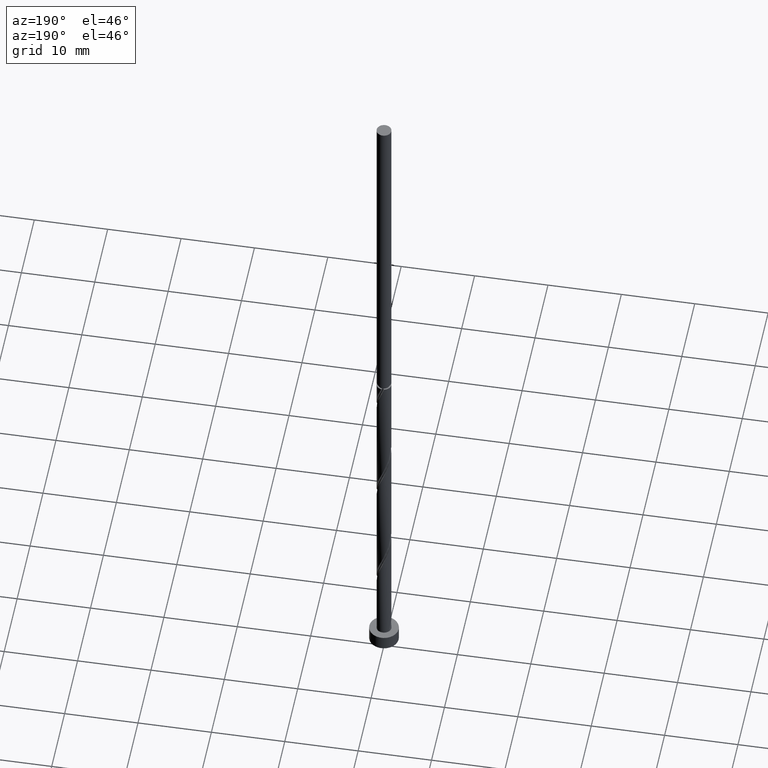
[diagram: clean part render]
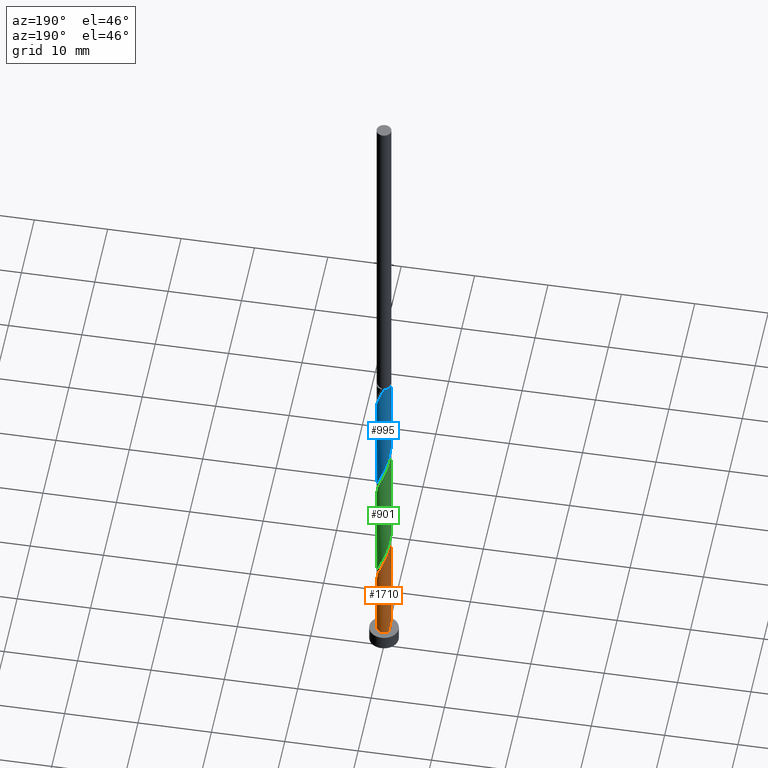
[diagram: same view with three faces highlighted in distinct colors, each labeled with its STEP entity id]
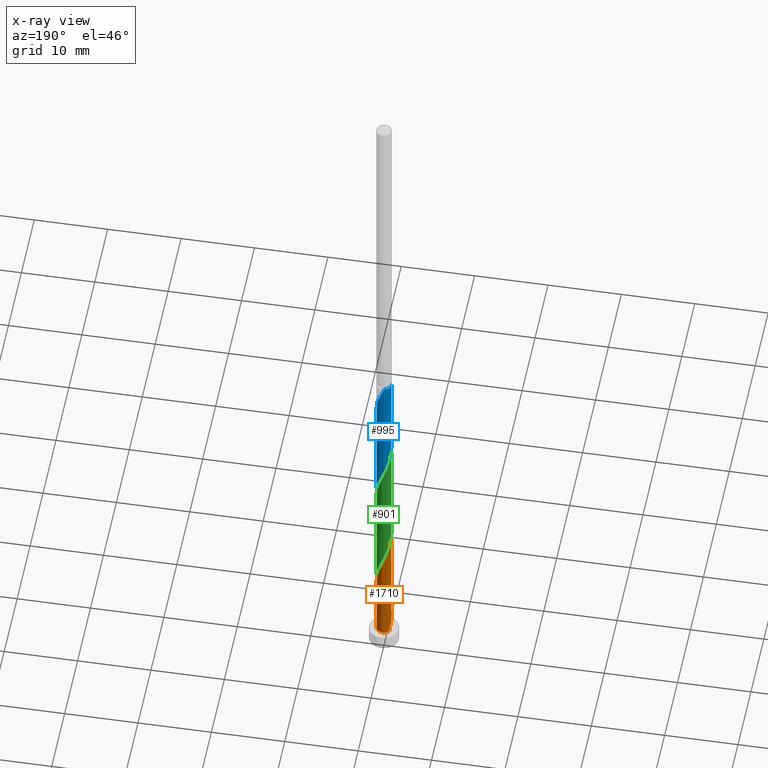
[diagram: x-ray of the same camera — body ghosted, the three highlighted faces saturated]
A machine part, auxiliary view with three faces highlighted in distinct colors.
The next image is the same camera in x-ray (body ghosted, the three faces saturated) — at least one of them is partly hidden behind the body in this view.
Their STEP definitions:

[orange] entity #1710 — the highlighted cylindrical surface (edge-blend (fillet) strip) has radius 1 mm, axis along (-0, -0, -1).
#63 = CARTESIAN_POINT ( 'NONE',  ( -0.02619704632701985031, 1.015088626125574711, 15.14834802638990574 ) ) ;
#118 = CARTESIAN_POINT ( 'NONE',  ( -0.9999999999999940048, 0.01290167433229766000, 3.608148503741846813 ) ) ;
#150 = CARTESIAN_POINT ( 'NONE',  ( -0.9482036394194104378, 0.3176631206038675881, 18.38908876713064444 ) ) ;
#166 = CARTESIAN_POINT ( 'NONE',  ( -1.000000000000001554, 5.639459871452275137E-16, 19.24712276769746211 ) ) ;
#219 = CARTESIAN_POINT ( 'NONE',  ( -1.000000000000001554, 5.639459871452275137E-16, 19.24712276769746211 ) ) ;
#220 = VECTOR ( 'NONE', #1226, 1000.000000000000000 ) ;
#235 = CARTESIAN_POINT ( 'NONE',  ( 1.000000000000001554, -5.807523245104826161E-16, 10.91378943436413174 ) ) ;
#243 = CARTESIAN_POINT ( 'NONE',  ( -1.000000000000001110, 5.614885271482465354E-13, 3.642165877673452457 ) ) ;
#257 = EDGE_CURVE ( 'NONE', #1102, #877, #658, .T. ) ;
#306 = CARTESIAN_POINT ( 'NONE',  ( 0.7492061519980941497, 0.6623368793961353918, 12.83353321157508198 ) ) ;
#372 = CYLINDRICAL_SURFACE ( 'NONE', #1081, 1.000000000000000000 ) ;
#395 = EDGE_CURVE ( 'NONE', #877, #1002, #406, .T. ) ;
#406 = CIRCLE ( 'NONE', #1108, 1.000000000000000000 ) ;
#409 = VECTOR ( 'NONE', #1110, 1000.000000000000000 ) ;
#440 = CARTESIAN_POINT ( 'NONE',  ( -1.000000000000002220, 0.1630543718204592596, 18.81720325533184024 ) ) ;
#447 = CARTESIAN_POINT ( 'NONE',  ( 0.9951180796480333379, 0.2020673444260030482, 11.44464432268620335 ) ) ;
#472 =( BOUNDED_CURVE ( )  B_SPLINE_CURVE ( 2, ( #849, #622, #1574, #447, #1282, #991, #306, #1332, #999, #584, #1583, #63, #865, #1291, #592, #1439, #1755, #732, #150, #440, #166 ),
 .UNSPECIFIED., .F., .T. ) 
 B_SPLINE_CURVE_WITH_KNOTS ( ( 3, 2, 2, 2, 2, 2, 2, 2, 2, 2, 3 ),
 ( 0.1795248053855293680, 0.1805555555555555802, 0.1944444444444444198, 0.2083333333333333703, 0.2222222222222222099, 0.2361111111111111605, 0.2500000000000000000, 0.2638888888888888395, 0.2777777777777777901, 0.2916666666666666297, 0.3045248053855295622 ),
 .UNSPECIFIED. ) 
 CURVE ( )  GEOMETRIC_REPRESENTATION_ITEM ( )  RATIONAL_B_SPLINE_CURVE ( ( 0.9071930855141416838, 0.9080659294509891843, 0.9090909090909289336, 0.8952797754656631746, 0.9090909090909289336, 0.8952797754656631746, 0.9090909090909289336, 0.8952797754656631746, 0.9090909090909289336, 0.8952797754656631746, 0.9090909090909289336, 0.8952797754656631746, 0.9090909090909289336, 0.8952797754656631746, 0.9090909090909289336, 0.8952797754656631746, 0.9090909090909289336, 0.8952797754656631746, 0.9090909090909289336, 0.8963047551056027018, 0.9071930855141420169 ) ) 
 REPRESENTATION_ITEM ( '' )  );
#498 = FACE_OUTER_BOUND ( 'NONE', #821, .T. ) ;
#584 = CARTESIAN_POINT ( 'NONE',  ( 0.3225635862758384764, 0.9628312089533845874, 14.22242210046397837 ) ) ;
#592 = CARTESIAN_POINT ( 'NONE',  ( -0.5221762109439036514, 0.8528376192009065049, 16.53723691527879325 ) ) ;
#622 = CARTESIAN_POINT ( 'NONE',  ( 1.000000000000001332, 0.01290167433201631388, 10.94780680829647679 ) ) ;
#658 = LINE ( 'NONE', #1359, #220 ) ;
#663 = DIRECTION ( 'NONE',  ( -1.000000000000000000, 0.000000000000000000, 0.000000000000000000 ) ) ;
#692 = EDGE_CURVE ( 'NONE', #1709, #1002, #1432, .T. ) ;
#698 = CARTESIAN_POINT ( 'NONE',  ( 1.000000000000000000, 1.224646799147353207E-16, 2.000000000000000000 ) ) ;
#732 = CARTESIAN_POINT ( 'NONE',  ( -0.8921910604809016876, 0.4848570054394703566, 17.92612580416769319 ) ) ;
#797 = DIRECTION ( 'NONE',  ( -0.000000000000000000, -0.000000000000000000, -1.000000000000000000 ) ) ;
#821 = EDGE_LOOP ( 'NONE', ( #987, #1425, #844, #1303, #1213 ) ) ;
#828 = CARTESIAN_POINT ( 'NONE',  ( -1.000000000000000000, 0.000000000000000000, 98.00000000000000000 ) ) ;
#844 = ORIENTED_EDGE ( 'NONE', *, *, #395, .T. ) ;
#849 = CARTESIAN_POINT ( 'NONE',  ( 1.000000000000001554, -5.807523245104826161E-16, 10.91378943436413174 ) ) ;
#865 = CARTESIAN_POINT ( 'NONE',  ( -0.1989974874213158718, 0.9800000000000029798, 15.61131098935286587 ) ) ;
#877 = VERTEX_POINT ( 'NONE', #698 ) ;
#957 = CARTESIAN_POINT ( 'NONE',  ( -0.9305560469009571678, 0.3661494825560536737, 2.648348026389899079 ) ) ;
#966 = EDGE_CURVE ( 'NONE', #1102, #1677, #472, .T. ) ;
#975 = CARTESIAN_POINT ( 'NONE',  ( -0.8144642547948971467, 0.5802137344646324246, 1.999999999999997335 ) ) ;
#987 = ORIENTED_EDGE ( 'NONE', *, *, #966, .F. ) ;
#991 = CARTESIAN_POINT ( 'NONE',  ( 0.8659940141538823299, 0.5302316206861036330, 12.37057024861212717 ) ) ;
#999 = CARTESIAN_POINT ( 'NONE',  ( 0.4774909380590728336, 0.8786366735297754804, 13.75945913750101290 ) ) ;
#1002 = VERTEX_POINT ( 'NONE', #1721 ) ;
#1048 = CARTESIAN_POINT ( 'NONE',  ( 0.000000000000000000, 0.000000000000000000, 98.00000000000000000 ) ) ;
#1081 = AXIS2_PLACEMENT_3D ( 'NONE', #1048, #797, #663 ) ;
#1102 = VERTEX_POINT ( 'NONE', #235 ) ;
#1108 = AXIS2_PLACEMENT_3D ( 'NONE', #1402, #1686, #1256 ) ;
#1110 = DIRECTION ( 'NONE',  ( -0.000000000000000000, -0.000000000000000000, -1.000000000000000000 ) ) ;
#1213 = ORIENTED_EDGE ( 'NONE', *, *, #1274, .F. ) ;
#1226 = DIRECTION ( 'NONE',  ( -0.000000000000000000, -0.000000000000000000, -1.000000000000000000 ) ) ;
#1256 = DIRECTION ( 'NONE',  ( 1.000000000000000000, 0.000000000000000000, 0.000000000000000000 ) ) ;
#1262 = LINE ( 'NONE', #828, #409 ) ;
#1274 = EDGE_CURVE ( 'NONE', #1677, #1709, #1262, .T. ) ;
#1282 = CARTESIAN_POINT ( 'NONE',  ( 0.9305560469009577229, 0.3661494825560533406, 11.90760728564916526 ) ) ;
#1291 = CARTESIAN_POINT ( 'NONE',  ( -0.3717979285156123859, 0.9449113738744318036, 16.07427395231583489 ) ) ;
#1303 = ORIENTED_EDGE ( 'NONE', *, *, #692, .F. ) ;
#1332 = CARTESIAN_POINT ( 'NONE',  ( 0.6324182898423071908, 0.7944421381061670395, 13.29649617453804922 ) ) ;
#1359 = CARTESIAN_POINT ( 'NONE',  ( 1.000000000000000000, 1.224646799147353207E-16, 98.00000000000000000 ) ) ;
#1402 = CARTESIAN_POINT ( 'NONE',  ( 0.000000000000000000, 0.000000000000000000, 2.000000000000000000 ) ) ;
#1415 = CARTESIAN_POINT ( 'NONE',  ( -0.8856399419170188914, 0.4803021854474019414, 2.326262550401513529 ) ) ;
#1425 = ORIENTED_EDGE ( 'NONE', *, *, #257, .T. ) ;
#1432 =( BOUNDED_CURVE ( )  B_SPLINE_CURVE ( 2, ( #1530, #118, #1653, #1546, #957, #1415, #975 ),
 .UNSPECIFIED., .F., .T. ) 
 B_SPLINE_CURVE_WITH_KNOTS ( ( 3, 2, 2, 3 ),
 ( 0.9295248053855518222, 0.9305555555555555802, 0.9444444444444444198, 0.9541518855491376572 ),
 .UNSPECIFIED. ) 
 CURVE ( )  GEOMETRIC_REPRESENTATION_ITEM ( )  RATIONAL_B_SPLINE_CURVE ( ( 0.9071930855141691064, 0.9080659294510008417, 0.9090909090909183865, 0.8952797754656526275, 0.9090909090909183865, 0.8994378139204637357, 0.9032785055597161161 ) ) 
 REPRESENTATION_ITEM ( '' )  );
#1439 = CARTESIAN_POINT ( 'NONE',  ( -0.6725544933721950835, 0.7607638645273815392, 17.00019987824175516 ) ) ;
#1530 = CARTESIAN_POINT ( 'NONE',  ( -1.000000000000001110, 5.614885271482465354E-13, 3.642165877673452457 ) ) ;
#1546 = CARTESIAN_POINT ( 'NONE',  ( -0.9951180796480333379, 0.2020673444260032703, 3.111310989352863654 ) ) ;
#1574 = CARTESIAN_POINT ( 'NONE',  ( 0.9996671490029762630, 0.02579905432886920452, 10.98168135972323789 ) ) ;
#1583 = CARTESIAN_POINT ( 'NONE',  ( 0.1481832699744097537, 0.9889599175394793162, 14.68538506342694028 ) ) ;
#1653 = CARTESIAN_POINT ( 'NONE',  ( -0.9996671490029760410, 0.02579905432886922187, 3.574273952315826453 ) ) ;
#1677 = VERTEX_POINT ( 'NONE', #219 ) ;
#1686 = DIRECTION ( 'NONE',  ( 0.000000000000000000, 0.000000000000000000, 1.000000000000000000 ) ) ;
#1709 = VERTEX_POINT ( 'NONE', #243 ) ;
#1710 = ADVANCED_FACE ( 'NONE', ( #498 ), #372, .T. ) ;
#1721 = CARTESIAN_POINT ( 'NONE',  ( -0.8144642547948971467, 0.5802137344646324246, 1.999999999999997335 ) ) ;
#1755 = CARTESIAN_POINT ( 'NONE',  ( -0.7823727769265483856, 0.6228104349834256981, 17.46316284120471707 ) ) ;

[blue] entity #995 — the highlighted cylindrical surface (edge-blend (fillet) strip) has radius 1 mm, axis along (-0, -0, -1).
#1 = EDGE_CURVE ( 'NONE', #1191, #394, #1484, .T. ) ;
#21 = CARTESIAN_POINT ( 'NONE',  ( -1.000000000000001110, -5.732828412370425654E-16, 36.97549921100826964 ) ) ;
#46 = AXIS2_PLACEMENT_3D ( 'NONE', #486, #509, #1799 ) ;
#65 = CARTESIAN_POINT ( 'NONE',  ( -0.1989974874213158440, 0.9800000000000025357, 48.94464432268620868 ) ) ;
#71 = EDGE_CURVE ( 'NONE', #271, #1311, #1054, .T. ) ;
#78 = CARTESIAN_POINT ( 'NONE',  ( -1.000000000000005995, 0.000000000000000000, 48.94464432268620158 ) ) ;
#104 = CARTESIAN_POINT ( 'NONE',  ( -1.000000000000000000, 0.000000000000000000, 98.00000000000000000 ) ) ;
#121 = CARTESIAN_POINT ( 'NONE',  ( 0.8921910604809017986, 0.4848570054394699680, 29.96316284120472062 ) ) ;
#129 = CARTESIAN_POINT ( 'NONE',  ( -0.6324182898423069688, 0.7944421381061669285, 34.59279247083436104 ) ) ;
#137 = CARTESIAN_POINT ( 'NONE',  ( 1.000000000000000888, 0.1630543718204619241, 29.07208539004057002 ) ) ;
#144 = CARTESIAN_POINT ( 'NONE',  ( 0.1989974874213162603, 0.9800000000000025357, 32.27797765601952307 ) ) ;
#159 = VECTOR ( 'NONE', #201, 1000.000000000000000 ) ;
#201 = DIRECTION ( 'NONE',  ( -0.000000000000000000, -0.000000000000000000, -1.000000000000000000 ) ) ;
#205 = EDGE_CURVE ( 'NONE', #1191, #1767, #848, .T. ) ;
#237 = DIRECTION ( 'NONE',  ( -0.000000000000000000, -0.000000000000000000, -1.000000000000000000 ) ) ;
#271 = VERTEX_POINT ( 'NONE', #78 ) ;
#360 =( BOUNDED_CURVE ( )  B_SPLINE_CURVE ( 2, ( #1400, #1827, #835, #851, #820, #1254, #1277, #129, #556, #1684, #570, #843, #144, #1125, #1410, #425, #419, #121, #986, #137, #1817 ),
 .UNSPECIFIED., .F., .T. ) 
 B_SPLINE_CURVE_WITH_KNOTS ( ( 3, 2, 2, 2, 2, 2, 2, 2, 2, 2, 3 ),
 ( 0.4295248053855293957, 0.4305555555555555802, 0.4444444444444444198, 0.4583333333333333148, 0.4722222222222222099, 0.4861111111111111049, 0.5000000000000000000, 0.5138888888888888395, 0.5277777777777777901, 0.5416666666666666297, 0.5545248053855292847 ),
 .UNSPECIFIED. ) 
 CURVE ( )  GEOMETRIC_REPRESENTATION_ITEM ( )  RATIONAL_B_SPLINE_CURVE ( ( 0.9071930855141312477, 0.9080659294509786372, 0.9090909090909183865, 0.8952797754656526275, 0.9090909090909183865, 0.8952797754656526275, 0.9090909090909183865, 0.8952797754656526275, 0.9090909090909183865, 0.8952797754656526275, 0.9090909090909183865, 0.8952797754656526275, 0.9090909090909183865, 0.8952797754656526275, 0.9090909090909183865, 0.8952797754656526275, 0.9090909090909183865, 0.8952797754656526275, 0.9090909090909183865, 0.8963047551055924878, 0.9071930855141309147 ) ) 
 REPRESENTATION_ITEM ( '' )  );
#394 = VERTEX_POINT ( 'NONE', #1536 ) ;
#419 = CARTESIAN_POINT ( 'NONE',  ( 0.7823727769265482745, 0.6228104349834252540, 30.42612580416768253 ) ) ;
#425 = CARTESIAN_POINT ( 'NONE',  ( 0.6725544933721956387, 0.7607638645273813172, 30.88908876713064799 ) ) ;
#486 = CARTESIAN_POINT ( 'NONE',  ( 0.000000000000000000, 0.000000000000000000, 48.94464432268620158 ) ) ;
#491 = CARTESIAN_POINT ( 'NONE',  ( 0.9305560469009577229, 0.3661494825560533406, 45.24094061898250629 ) ) ;
#509 = DIRECTION ( 'NONE',  ( -0.000000000000000000, -0.000000000000000000, -1.000000000000000000 ) ) ;
#519 = CARTESIAN_POINT ( 'NONE',  ( -0.1989974874213158440, 0.9800000000000025357, 48.94464432268620868 ) ) ;
#540 = ORIENTED_EDGE ( 'NONE', *, *, #71, .F. ) ;
#556 = CARTESIAN_POINT ( 'NONE',  ( -0.4774909380590723895, 0.8786366735297754804, 34.12982950787137781 ) ) ;
#570 = CARTESIAN_POINT ( 'NONE',  ( -0.1481832699744089488, 0.9889599175394793162, 33.20390358194544689 ) ) ;
#576 = FACE_OUTER_BOUND ( 'NONE', #1245, .T. ) ;
#657 = CARTESIAN_POINT ( 'NONE',  ( 0.6324182898423071908, 0.7944421381061670395, 46.62982950787139202 ) ) ;
#684 = ORIENTED_EDGE ( 'NONE', *, *, #205, .F. ) ;
#700 = CARTESIAN_POINT ( 'NONE',  ( 1.000000000000001332, -6.871924611570983959E-16, 44.24712276769746921 ) ) ;
#765 = CARTESIAN_POINT ( 'NONE',  ( 0.4774909380590728336, 0.8786366735297754804, 47.09279247083434683 ) ) ;
#800 = CARTESIAN_POINT ( 'NONE',  ( 0.7492061519980941497, 0.6623368793961353918, 46.16686654490842301 ) ) ;
#820 = CARTESIAN_POINT ( 'NONE',  ( -0.9305560469009571678, 0.3661494825560536737, 35.98168135972322546 ) ) ;
#835 = CARTESIAN_POINT ( 'NONE',  ( -0.9996671490029760410, 0.02579905432886922187, 36.90760728564914928 ) ) ;
#843 = CARTESIAN_POINT ( 'NONE',  ( 0.02619704632701990582, 1.015088626125574489, 32.74094061898249919 ) ) ;
#848 =( BOUNDED_CURVE ( )  B_SPLINE_CURVE ( 2, ( #946, #1516, #1367, #1064, #491, #1494, #800, #657, #765, #1628, #1225, #1791, #65 ),
 .UNSPECIFIED., .F., .T. ) 
 B_SPLINE_CURVE_WITH_KNOTS ( ( 3, 2, 2, 2, 2, 2, 3 ),
 ( 0.6795248053855295067, 0.6805555555555555802, 0.6944444444444444198, 0.7083333333333332593, 0.7222222222222222099, 0.7361111111111111605, 0.7500000000000000000 ),
 .UNSPECIFIED. ) 
 CURVE ( )  GEOMETRIC_REPRESENTATION_ITEM ( )  RATIONAL_B_SPLINE_CURVE ( ( 0.9071930855141419059, 0.9080659294509891843, 0.9090909090909289336, 0.8952797754656631746, 0.9090909090909289336, 0.8952797754656631746, 0.9090909090909289336, 0.8952797754656631746, 0.9090909090909289336, 0.8952797754656631746, 0.9090909090909289336, 0.8952797754656631746, 0.9090909090909289336 ) ) 
 REPRESENTATION_ITEM ( '' )  );
#851 = CARTESIAN_POINT ( 'NONE',  ( -0.9951180796480333379, 0.2020673444260032703, 36.44464432268619447 ) ) ;
#909 = ORIENTED_EDGE ( 'NONE', *, *, #1304, .F. ) ;
#946 = CARTESIAN_POINT ( 'NONE',  ( 1.000000000000001332, -6.871924611570983959E-16, 44.24712276769746921 ) ) ;
#986 = CARTESIAN_POINT ( 'NONE',  ( 0.9482036394194102158, 0.3176631206038675326, 29.50019987824175516 ) ) ;
#995 = ADVANCED_FACE ( 'NONE', ( #576 ), #1616, .T. ) ;
#1054 = LINE ( 'NONE', #104, #1194 ) ;
#1064 = CARTESIAN_POINT ( 'NONE',  ( 0.9951180796480333379, 0.2020673444260030482, 44.77797765601955859 ) ) ;
#1125 = CARTESIAN_POINT ( 'NONE',  ( 0.3717979285156123304, 0.9449113738744315816, 31.81501469305657182 ) ) ;
#1139 = CARTESIAN_POINT ( 'NONE',  ( 0.000000000000000000, 0.000000000000000000, 98.00000000000000000 ) ) ;
#1154 = DIRECTION ( 'NONE',  ( -1.000000000000000000, 0.000000000000000000, 0.000000000000000000 ) ) ;
#1191 = VERTEX_POINT ( 'NONE', #700 ) ;
#1194 = VECTOR ( 'NONE', #237, 1000.000000000000000 ) ;
#1225 = CARTESIAN_POINT ( 'NONE',  ( 0.1481832699744097537, 0.9889599175394793162, 48.01871839676027065 ) ) ;
#1245 = EDGE_LOOP ( 'NONE', ( #684, #1587, #909, #540, #1781 ) ) ;
#1254 = CARTESIAN_POINT ( 'NONE',  ( -0.8659940141538817748, 0.5302316206861042991, 35.51871839676027776 ) ) ;
#1277 = CARTESIAN_POINT ( 'NONE',  ( -0.7492061519980941497, 0.6623368793961356138, 35.05575543379730874 ) ) ;
#1304 = EDGE_CURVE ( 'NONE', #1311, #394, #360, .T. ) ;
#1311 = VERTEX_POINT ( 'NONE', #21 ) ;
#1314 = AXIS2_PLACEMENT_3D ( 'NONE', #1139, #1705, #1154 ) ;
#1367 = CARTESIAN_POINT ( 'NONE',  ( 0.9996671490029762630, 0.02579905432886920452, 44.31501469305657537 ) ) ;
#1400 = CARTESIAN_POINT ( 'NONE',  ( -1.000000000000001110, -5.732828412370425654E-16, 36.97549921100826964 ) ) ;
#1410 = CARTESIAN_POINT ( 'NONE',  ( 0.5221762109439042066, 0.8528376192009059498, 31.35205173009359569 ) ) ;
#1436 = CIRCLE ( 'NONE', #46, 1.000000000000005995 ) ;
#1484 = LINE ( 'NONE', #1757, #159 ) ;
#1494 = CARTESIAN_POINT ( 'NONE',  ( 0.8659940141538823299, 0.5302316206861036330, 45.70390358194546820 ) ) ;
#1516 = CARTESIAN_POINT ( 'NONE',  ( 1.000000000000001554, 0.01290167433201795839, 44.28114014162982670 ) ) ;
#1536 = CARTESIAN_POINT ( 'NONE',  ( 1.000000000000001554, 8.963379928136170054E-17, 28.64216587767493039 ) ) ;
#1587 = ORIENTED_EDGE ( 'NONE', *, *, #1, .T. ) ;
#1616 = CYLINDRICAL_SURFACE ( 'NONE', #1314, 1.000000000000000000 ) ;
#1628 = CARTESIAN_POINT ( 'NONE',  ( 0.3225635862758384764, 0.9628312089533845874, 47.55575543379731585 ) ) ;
#1657 = EDGE_CURVE ( 'NONE', #271, #1767, #1436, .T. ) ;
#1684 = CARTESIAN_POINT ( 'NONE',  ( -0.3225635862758378658, 0.9628312089533848095, 33.66686654490842301 ) ) ;
#1705 = DIRECTION ( 'NONE',  ( -0.000000000000000000, -0.000000000000000000, -1.000000000000000000 ) ) ;
#1757 = CARTESIAN_POINT ( 'NONE',  ( 1.000000000000000000, 1.224646799147353207E-16, 98.00000000000000000 ) ) ;
#1767 = VERTEX_POINT ( 'NONE', #519 ) ;
#1781 = ORIENTED_EDGE ( 'NONE', *, *, #1657, .T. ) ;
#1791 = CARTESIAN_POINT ( 'NONE',  ( -0.02619704632701985031, 1.015088626125574711, 48.48168135972323256 ) ) ;
#1799 = DIRECTION ( 'NONE',  ( -1.000000000000000000, 0.000000000000000000, 0.000000000000000000 ) ) ;
#1817 = CARTESIAN_POINT ( 'NONE',  ( 1.000000000000001554, 8.963379928136170054E-17, 28.64216587767493394 ) ) ;
#1827 = CARTESIAN_POINT ( 'NONE',  ( -1.000000000000001110, 0.01290167433201666949, 36.94148183707591215 ) ) ;

[green] entity #901 — the highlighted cylindrical surface (edge-blend (fillet) strip) has radius 1 mm, axis along (-0, -0, -1).
#4 = CARTESIAN_POINT ( 'NONE',  ( 0.1481832699744097537, 0.9889599175394793162, 31.35205173009360280 ) ) ;
#32 = CARTESIAN_POINT ( 'NONE',  ( -0.8921910604809016876, 0.4848570054394703566, 34.59279247083436815 ) ) ;
#44 = ORIENTED_EDGE ( 'NONE', *, *, #1185, .T. ) ;
#152 = CARTESIAN_POINT ( 'NONE',  ( -1.000000000000000000, 0.000000000000000000, 98.00000000000000000 ) ) ;
#157 = FACE_OUTER_BOUND ( 'NONE', #1562, .T. ) ;
#266 = CARTESIAN_POINT ( 'NONE',  ( 0.9996671490029762630, 0.02579905432886920452, 27.64834802638990396 ) ) ;
#270 = LINE ( 'NONE', #152, #485 ) ;
#283 = CARTESIAN_POINT ( 'NONE',  ( -0.5221762109439036514, 0.8528376192009065049, 33.20390358194545399 ) ) ;
#295 = CARTESIAN_POINT ( 'NONE',  ( 0.3717979285156123304, 0.9449113738744315816, 15.14834802638990574 ) ) ;
#320 = CARTESIAN_POINT ( 'NONE',  ( 0.8921910604809017986, 0.4848570054394699680, 13.29649617453804744 ) ) ;
#417 = CARTESIAN_POINT ( 'NONE',  ( 0.3225635862758384764, 0.9628312089533845874, 30.88908876713064444 ) ) ;
#434 = CARTESIAN_POINT ( 'NONE',  ( -0.4774909380590723895, 0.8786366735297754804, 17.46316284120470996 ) ) ;
#442 = CARTESIAN_POINT ( 'NONE',  ( 0.6725544933721956387, 0.7607638645273813172, 14.22242210046397837 ) ) ;
#455 = CARTESIAN_POINT ( 'NONE',  ( -0.7823727769265483856, 0.6228104349834256981, 34.12982950787138492 ) ) ;
#485 = VECTOR ( 'NONE', #707, 1000.000000000000000 ) ;
#499 = CARTESIAN_POINT ( 'NONE',  ( 1.000000000000000000, 1.224646799147353207E-16, 98.00000000000000000 ) ) ;
#527 = CARTESIAN_POINT ( 'NONE',  ( 1.000000000000001554, -5.807523245104826161E-16, 27.58045610103079781 ) ) ;
#531 = VERTEX_POINT ( 'NONE', #1829 ) ;
#546 = CARTESIAN_POINT ( 'NONE',  ( -1.000000000000001554, -2.108261653930336723E-15, 35.91378943436414062 ) ) ;
#554 = CARTESIAN_POINT ( 'NONE',  ( 0.8659940141538823299, 0.5302316206861036330, 29.03723691527879680 ) ) ;
#557 = ORIENTED_EDGE ( 'NONE', *, *, #1215, .F. ) ;
#562 = CARTESIAN_POINT ( 'NONE',  ( -0.02619704632701985031, 1.015088626125574711, 31.81501469305657892 ) ) ;
#564 = CARTESIAN_POINT ( 'NONE',  ( -0.9996671490029760410, 0.02579905432886922187, 20.24094061898248853 ) ) ;
#579 = CARTESIAN_POINT ( 'NONE',  ( 0.5221762109439042066, 0.8528376192009059498, 14.68538506342693672 ) ) ;
#690 = CARTESIAN_POINT ( 'NONE',  ( -0.3225635862758378658, 0.9628312089533848095, 17.00019987824175516 ) ) ;
#701 = ORIENTED_EDGE ( 'NONE', *, *, #883, .F. ) ;
#705 = CARTESIAN_POINT ( 'NONE',  ( -0.9482036394194104378, 0.3176631206038675881, 35.05575543379730874 ) ) ;
#707 = DIRECTION ( 'NONE',  ( -0.000000000000000000, -0.000000000000000000, -1.000000000000000000 ) ) ;
#825 = CARTESIAN_POINT ( 'NONE',  ( 0.9951180796480333379, 0.2020673444260030482, 28.11131098935287653 ) ) ;
#841 = CARTESIAN_POINT ( 'NONE',  ( -0.6725544933721950835, 0.7607638645273815392, 33.66686654490843722 ) ) ;
#883 = EDGE_CURVE ( 'NONE', #1401, #1200, #972, .T. ) ;
#901 = ADVANCED_FACE ( 'NONE', ( #157 ), #1006, .T. ) ;
#969 = CARTESIAN_POINT ( 'NONE',  ( -0.8659940141538817748, 0.5302316206861042991, 18.85205173009360280 ) ) ;
#970 = ORIENTED_EDGE ( 'NONE', *, *, #1326, .F. ) ;
#972 =( BOUNDED_CURVE ( )  B_SPLINE_CURVE ( 2, ( #527, #1672, #266, #825, #1267, #554, #1398, #1259, #1682, #417, #4, #562, #1123, #1689, #283, #841, #455, #32, #705, #1130, #1275 ),
 .UNSPECIFIED., .F., .T. ) 
 B_SPLINE_CURVE_WITH_KNOTS ( ( 3, 2, 2, 2, 2, 2, 2, 2, 2, 2, 3 ),
 ( 0.4295248053855293402, 0.4305555555555555802, 0.4444444444444444198, 0.4583333333333333703, 0.4722222222222222099, 0.4861111111111111605, 0.5000000000000000000, 0.5138888888888888395, 0.5277777777777777901, 0.5416666666666667407, 0.5545248053855293957 ),
 .UNSPECIFIED. ) 
 CURVE ( )  GEOMETRIC_REPRESENTATION_ITEM ( )  RATIONAL_B_SPLINE_CURVE ( ( 0.9071930855141416838, 0.9080659294509891843, 0.9090909090909289336, 0.8952797754656631746, 0.9090909090909289336, 0.8952797754656631746, 0.9090909090909289336, 0.8952797754656631746, 0.9090909090909289336, 0.8952797754656631746, 0.9090909090909289336, 0.8952797754656631746, 0.9090909090909289336, 0.8952797754656631746, 0.9090909090909289336, 0.8952797754656631746, 0.9090909090909289336, 0.8952797754656631746, 0.9090909090909289336, 0.8963047551056029238, 0.9071930855141416838 ) ) 
 REPRESENTATION_ITEM ( '' )  );
#993 = CARTESIAN_POINT ( 'NONE',  ( -0.1481832699744089488, 0.9889599175394793162, 16.53723691527879325 ) ) ;
#1006 = CYLINDRICAL_SURFACE ( 'NONE', #1794, 1.000000000000000000 ) ;
#1019 = CARTESIAN_POINT ( 'NONE',  ( 1.000000000000001332, 0.1630543718204605363, 12.40541872337389684 ) ) ;
#1034 =( BOUNDED_CURVE ( )  B_SPLINE_CURVE ( 2, ( #1269, #1133, #564, #1424, #1554, #969, #1118, #1692, #434, #690, #993, #1561, #1141, #295, #579, #442, #1534, #320, #1602, #1019, #1741 ),
 .UNSPECIFIED., .F., .T. ) 
 B_SPLINE_CURVE_WITH_KNOTS ( ( 3, 2, 2, 2, 2, 2, 2, 2, 2, 2, 3 ),
 ( 0.6795248053855540427, 0.6805555555555555802, 0.6944444444444444198, 0.7083333333333333703, 0.7222222222222222099, 0.7361111111111111605, 0.7500000000000000000, 0.7638888888888888395, 0.7777777777777777901, 0.7916666666666666297, 0.8045248053855293957 ),
 .UNSPECIFIED. ) 
 CURVE ( )  GEOMETRIC_REPRESENTATION_ITEM ( )  RATIONAL_B_SPLINE_CURVE ( ( 0.9071930855141728811, 0.9080659294510030621, 0.9090909090909183865, 0.8952797754656526275, 0.9090909090909183865, 0.8952797754656526275, 0.9090909090909183865, 0.8952797754656526275, 0.9090909090909183865, 0.8952797754656526275, 0.9090909090909183865, 0.8952797754656526275, 0.9090909090909183865, 0.8952797754656526275, 0.9090909090909183865, 0.8952797754656526275, 0.9090909090909183865, 0.8952797754656526275, 0.9090909090909183865, 0.8963047551055924878, 0.9071930855141311367 ) ) 
 REPRESENTATION_ITEM ( '' )  );
#1044 = VECTOR ( 'NONE', #1779, 1000.000000000000000 ) ;
#1118 = CARTESIAN_POINT ( 'NONE',  ( -0.7492061519980941497, 0.6623368793961356138, 18.38908876713063378 ) ) ;
#1123 = CARTESIAN_POINT ( 'NONE',  ( -0.1989974874213158718, 0.9800000000000029798, 32.27797765601953017 ) ) ;
#1130 = CARTESIAN_POINT ( 'NONE',  ( -1.000000000000001554, 0.1630543718204613413, 35.48386992199850454 ) ) ;
#1133 = CARTESIAN_POINT ( 'NONE',  ( -0.9999999999999931166, 0.01290167433232546935, 20.27481517040843428 ) ) ;
#1141 = CARTESIAN_POINT ( 'NONE',  ( 0.1989974874213162603, 0.9800000000000025357, 15.61131098935286587 ) ) ;
#1146 = CARTESIAN_POINT ( 'NONE',  ( 0.000000000000000000, 0.000000000000000000, 98.00000000000000000 ) ) ;
#1148 = CARTESIAN_POINT ( 'NONE',  ( 1.000000000000001554, -5.807523245104826161E-16, 27.58045610103079781 ) ) ;
#1185 = EDGE_CURVE ( 'NONE', #1401, #1717, #1769, .T. ) ;
#1189 = DIRECTION ( 'NONE',  ( -1.000000000000000000, 0.000000000000000000, 0.000000000000000000 ) ) ;
#1200 = VERTEX_POINT ( 'NONE', #546 ) ;
#1215 = EDGE_CURVE ( 'NONE', #1200, #531, #270, .T. ) ;
#1259 = CARTESIAN_POINT ( 'NONE',  ( 0.6324182898423071908, 0.7944421381061670395, 29.96316284120472417 ) ) ;
#1267 = CARTESIAN_POINT ( 'NONE',  ( 0.9305560469009577229, 0.3661494825560533406, 28.57427395231583134 ) ) ;
#1269 = CARTESIAN_POINT ( 'NONE',  ( -1.000000000000001110, 6.171249733105101995E-13, 20.30883254433996754 ) ) ;
#1275 = CARTESIAN_POINT ( 'NONE',  ( -1.000000000000001554, -2.108261653930336723E-15, 35.91378943436413351 ) ) ;
#1326 = EDGE_CURVE ( 'NONE', #531, #1717, #1034, .T. ) ;
#1398 = CARTESIAN_POINT ( 'NONE',  ( 0.7492061519980941497, 0.6623368793961353918, 29.50019987824175516 ) ) ;
#1401 = VERTEX_POINT ( 'NONE', #1148 ) ;
#1424 = CARTESIAN_POINT ( 'NONE',  ( -0.9951180796480333379, 0.2020673444260032703, 19.77797765601953373 ) ) ;
#1491 = CARTESIAN_POINT ( 'NONE',  ( 1.000000000000001554, 8.963379928136170054E-17, 11.97549921100827142 ) ) ;
#1534 = CARTESIAN_POINT ( 'NONE',  ( 0.7823727769265482745, 0.6228104349834252540, 13.75945913750101290 ) ) ;
#1554 = CARTESIAN_POINT ( 'NONE',  ( -0.9305560469009571678, 0.3661494825560536737, 19.31501469305657182 ) ) ;
#1561 = CARTESIAN_POINT ( 'NONE',  ( 0.02619704632701990582, 1.015088626125574489, 16.07427395231583134 ) ) ;
#1562 = EDGE_LOOP ( 'NONE', ( #701, #44, #970, #557 ) ) ;
#1602 = CARTESIAN_POINT ( 'NONE',  ( 0.9482036394194102158, 0.3176631206038675326, 12.83353321157508375 ) ) ;
#1672 = CARTESIAN_POINT ( 'NONE',  ( 1.000000000000001332, 0.01290167433201596693, 27.61447347496313753 ) ) ;
#1682 = CARTESIAN_POINT ( 'NONE',  ( 0.4774909380590728336, 0.8786366735297754804, 30.42612580416767898 ) ) ;
#1689 = CARTESIAN_POINT ( 'NONE',  ( -0.3717979285156123859, 0.9449113738744318036, 32.74094061898250629 ) ) ;
#1692 = CARTESIAN_POINT ( 'NONE',  ( -0.6324182898423069688, 0.7944421381061669285, 17.92612580416768608 ) ) ;
#1696 = DIRECTION ( 'NONE',  ( -0.000000000000000000, -0.000000000000000000, -1.000000000000000000 ) ) ;
#1717 = VERTEX_POINT ( 'NONE', #1491 ) ;
#1741 = CARTESIAN_POINT ( 'NONE',  ( 1.000000000000001554, 8.963379928136170054E-17, 11.97549921100827142 ) ) ;
#1769 = LINE ( 'NONE', #499, #1044 ) ;
#1779 = DIRECTION ( 'NONE',  ( -0.000000000000000000, -0.000000000000000000, -1.000000000000000000 ) ) ;
#1794 = AXIS2_PLACEMENT_3D ( 'NONE', #1146, #1696, #1189 ) ;
#1829 = CARTESIAN_POINT ( 'NONE',  ( -1.000000000000001110, 6.171249733105101995E-13, 20.30883254433996754 ) ) ;